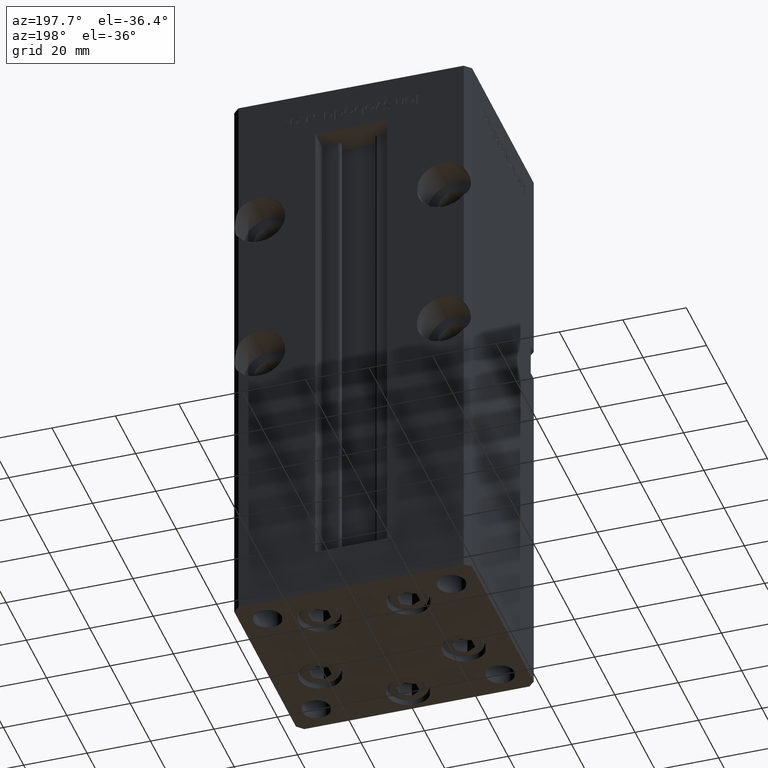
[diagram: clean part render]
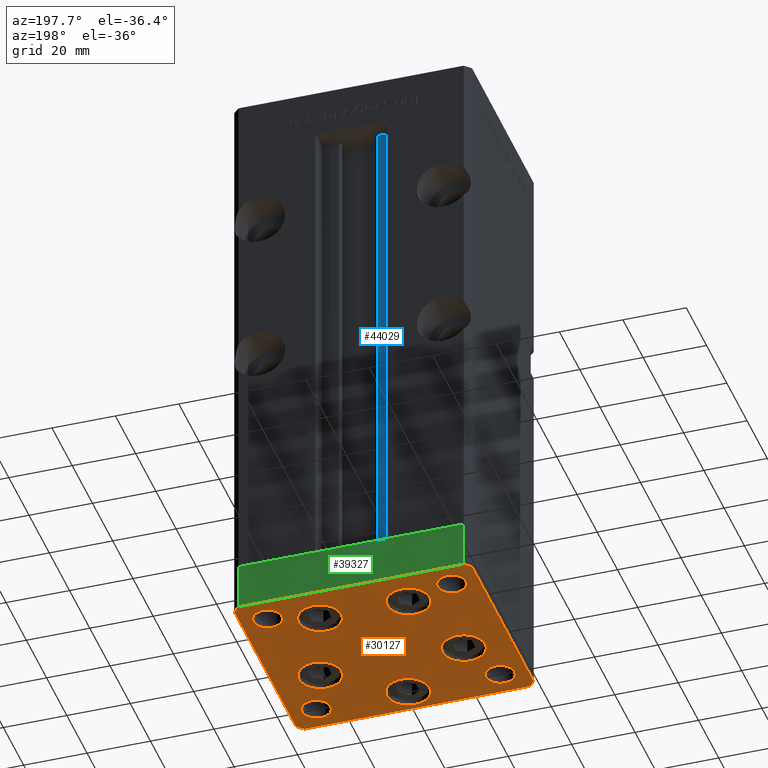
[diagram: same view with three faces highlighted in distinct colors, each labeled with its STEP entity id]
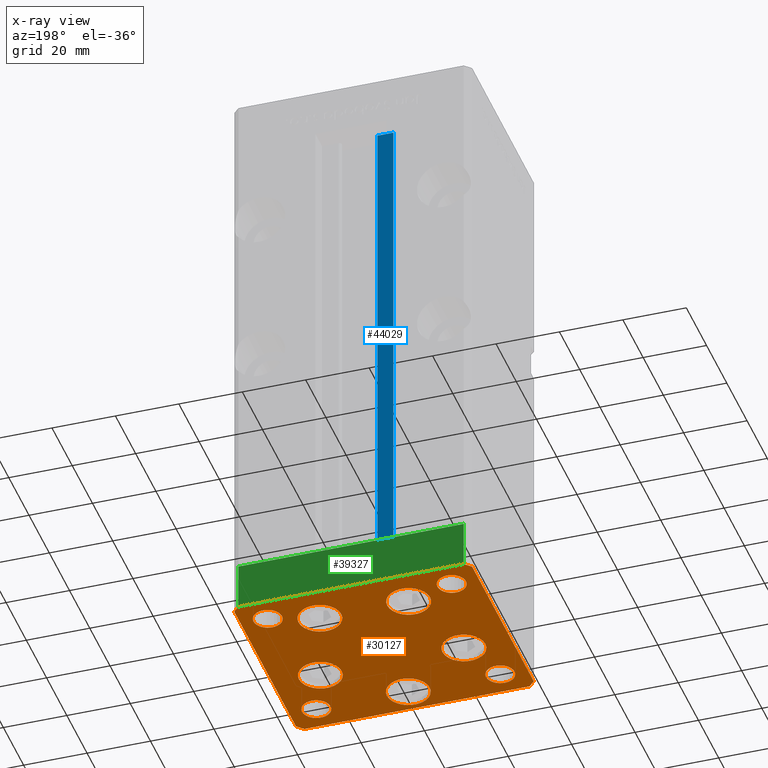
[diagram: x-ray of the same camera — body ghosted, the three highlighted faces saturated]
A machine part, auxiliary view with three faces highlighted in distinct colors.
The next image is the same camera in x-ray (body ghosted, the three faces saturated) — at least one of them is partly hidden behind the body in this view.
Their STEP definitions:

[orange] entity #30127 — the highlighted planar face has unit normal (0, 0, -1).
#12 = AXIS2_PLACEMENT_3D ( 'NONE', #42291, #50871, #46320 ) ;
#42 = CARTESIAN_POINT ( 'NONE',  ( 13.99106857963322348, 19.50000000000000000, 0.000000000000000000 ) ) ;
#216 = DIRECTION ( 'NONE',  ( 0.000000000000000000, -0.000000000000000000, -1.000000000000000000 ) ) ;
#895 = VECTOR ( 'NONE', #5261, 1000.000000000000000 ) ;
#925 = AXIS2_PLACEMENT_3D ( 'NONE', #44680, #19657, #11310 ) ;
#1130 = ORIENTED_EDGE ( 'NONE', *, *, #2839, .T. ) ;
#1533 = DIRECTION ( 'NONE',  ( 0.000000000000000000, -0.000000000000000000, -1.000000000000000000 ) ) ;
#1862 = DIRECTION ( 'NONE',  ( -0.7071067811865426878, -0.7071067811865524577, 0.000000000000000000 ) ) ;
#1924 = FACE_BOUND ( 'NONE', #46080, .T. ) ;
#2041 = DIRECTION ( 'NONE',  ( 0.7071067811865487940, 0.7071067811865463515, 0.000000000000000000 ) ) ;
#2263 = VERTEX_POINT ( 'NONE', #17030 ) ;
#2337 = VECTOR ( 'NONE', #2827, 1000.000000000000000 ) ;
#2526 = ORIENTED_EDGE ( 'NONE', *, *, #5913, .T. ) ;
#2611 = CARTESIAN_POINT ( 'NONE',  ( -20.74106857963763773, 19.49999999999999645, 0.000000000000000000 ) ) ;
#2827 = DIRECTION ( 'NONE',  ( -1.000000000000000000, -1.954618001100629052E-16, 0.000000000000000000 ) ) ;
#2839 = EDGE_CURVE ( 'NONE', #40923, #7219, #34032, .T. ) ;
#2934 = DIRECTION ( 'NONE',  ( 0.000000000000000000, -0.000000000000000000, -1.000000000000000000 ) ) ;
#2970 = CIRCLE ( 'NONE', #29613, 6.750000000004408918 ) ;
#3017 = EDGE_CURVE ( 'NONE', #31075, #40610, #22005, .T. ) ;
#3034 = VERTEX_POINT ( 'NONE', #24140 ) ;
#3510 = FACE_BOUND ( 'NONE', #20585, .T. ) ;
#3649 = CIRCLE ( 'NONE', #38869, 4.499999999999997335 ) ;
#3722 = EDGE_CURVE ( 'NONE', #37988, #12501, #50391, .T. ) ;
#3811 = DIRECTION ( 'NONE',  ( 1.000000000000000000, 0.000000000000000000, 0.000000000000000000 ) ) ;
#3890 = DIRECTION ( 'NONE',  ( 1.000000000000000000, 0.000000000000000000, 0.000000000000000000 ) ) ;
#3985 = VERTEX_POINT ( 'NONE', #10351 ) ;
#4478 = AXIS2_PLACEMENT_3D ( 'NONE', #45066, #24619, #3890 ) ;
#4651 = DIRECTION ( 'NONE',  ( 0.000000000000000000, -0.000000000000000000, -1.000000000000000000 ) ) ;
#4831 = EDGE_LOOP ( 'NONE', ( #41361, #16090 ) ) ;
#5221 = ORIENTED_EDGE ( 'NONE', *, *, #31690, .T. ) ;
#5224 = CARTESIAN_POINT ( 'NONE',  ( -24.50000000000001066, -23.99999999999999289, 0.000000000000000000 ) ) ;
#5261 = DIRECTION ( 'NONE',  ( 4.550094363217855288E-16, -1.000000000000000000, 0.000000000000000000 ) ) ;
#5678 = VERTEX_POINT ( 'NONE', #2611 ) ;
#5913 = EDGE_CURVE ( 'NONE', #30769, #3985, #40154, .T. ) ;
#6131 = ORIENTED_EDGE ( 'NONE', *, *, #3017, .T. ) ;
#6332 = ORIENTED_EDGE ( 'NONE', *, *, #23472, .T. ) ;
#6868 = DIRECTION ( 'NONE',  ( 1.000000000000000000, 0.000000000000000000, 0.000000000000000000 ) ) ;
#6877 = LINE ( 'NONE', #43753, #8335 ) ;
#6955 = EDGE_CURVE ( 'NONE', #8597, #44210, #15724, .T. ) ;
#6988 = CARTESIAN_POINT ( 'NONE',  ( -15.87741699796510808, -8.000000000000005329, 0.000000000000000000 ) ) ;
#7219 = VERTEX_POINT ( 'NONE', #27519 ) ;
#7932 = CARTESIAN_POINT ( 'NONE',  ( -37.49999999999998579, -30.50000000000001421, 0.000000000000000000 ) ) ;
#8335 = VECTOR ( 'NONE', #40534, 1000.000000000000000 ) ;
#8359 = DIRECTION ( 'NONE',  ( 1.000000000000000000, 0.000000000000000000, 0.000000000000000000 ) ) ;
#8375 = CIRCLE ( 'NONE', #15245, 6.750000000004410694 ) ;
#8517 = ORIENTED_EDGE ( 'NONE', *, *, #13771, .T. ) ;
#8596 = EDGE_CURVE ( 'NONE', #31727, #3034, #29789, .T. ) ;
#8597 = VERTEX_POINT ( 'NONE', #36902 ) ;
#8735 = CIRCLE ( 'NONE', #13016, 4.500000000000000888 ) ;
#8809 = VECTOR ( 'NONE', #1862, 1000.000000000000000 ) ;
#9096 = CARTESIAN_POINT ( 'NONE',  ( -29.00000000000001066, 24.00000000000000711, 0.000000000000000000 ) ) ;
#9134 = AXIS2_PLACEMENT_3D ( 'NONE', #42, #16960, #8359 ) ;
#10067 = VERTEX_POINT ( 'NONE', #39651 ) ;
#10351 = CARTESIAN_POINT ( 'NONE',  ( 6.750000000004413359, -24.00000000000000000, 0.000000000000000000 ) ) ;
#10363 = EDGE_LOOP ( 'NONE', ( #5221, #33392, #43956, #36332, #21380, #32531, #48648, #33955 ) ) ;
#10662 = DIRECTION ( 'NONE',  ( 0.7071067811865474617, -0.7071067811865474617, 0.000000000000000000 ) ) ;
#10690 = EDGE_CURVE ( 'NONE', #10067, #23081, #6877, .T. ) ;
#10812 = AXIS2_PLACEMENT_3D ( 'NONE', #39813, #2934, #19617 ) ;
#10931 = ORIENTED_EDGE ( 'NONE', *, *, #11757, .T. ) ;
#11310 = DIRECTION ( 'NONE',  ( 1.000000000000000000, 0.000000000000000000, 0.000000000000000000 ) ) ;
#11757 = EDGE_CURVE ( 'NONE', #3034, #31727, #16098, .T. ) ;
#12501 = VERTEX_POINT ( 'NONE', #36836 ) ;
#12989 = VERTEX_POINT ( 'NONE', #47532 ) ;
#13016 = AXIS2_PLACEMENT_3D ( 'NONE', #15301, #31742, #17160 ) ;
#13671 = DIRECTION ( 'NONE',  ( -0.000000000000000000, 0.000000000000000000, 1.000000000000000000 ) ) ;
#13771 = EDGE_CURVE ( 'NONE', #5678, #18567, #24638, .T. ) ;
#13831 = CARTESIAN_POINT ( 'NONE',  ( 29.00000000000001066, 24.00000000000000711, 0.000000000000000000 ) ) ;
#13915 = DIRECTION ( 'NONE',  ( 1.000000000000000000, 0.000000000000000000, 0.000000000000000000 ) ) ;
#13927 = CIRCLE ( 'NONE', #4478, 6.750000000004412470 ) ;
#14086 = ORIENTED_EDGE ( 'NONE', *, *, #32239, .T. ) ;
#14935 = EDGE_LOOP ( 'NONE', ( #2526, #39875 ) ) ;
#15041 = CARTESIAN_POINT ( 'NONE',  ( 35.50000000000000711, -32.50000000000000711, 0.000000000000000000 ) ) ;
#15214 = DIRECTION ( 'NONE',  ( 0.000000000000000000, -0.000000000000000000, -1.000000000000000000 ) ) ;
#15245 = AXIS2_PLACEMENT_3D ( 'NONE', #21511, #37930, #45733 ) ;
#15301 = CARTESIAN_POINT ( 'NONE',  ( -29.00000000000001066, -23.99999999999999289, 0.000000000000000000 ) ) ;
#15349 = PLANE ( 'NONE',  #925 ) ;
#15724 = LINE ( 'NONE', #16260, #2337 ) ;
#15746 = ORIENTED_EDGE ( 'NONE', *, *, #41413, .F. ) ;
#15792 = CARTESIAN_POINT ( 'NONE',  ( -33.50000000000001421, -23.99999999999999289, 0.000000000000000000 ) ) ;
#15814 = VERTEX_POINT ( 'NONE', #6988 ) ;
#15881 = FACE_OUTER_BOUND ( 'NONE', #10363, .T. ) ;
#16090 = ORIENTED_EDGE ( 'NONE', *, *, #42010, .F. ) ;
#16098 = CIRCLE ( 'NONE', #36740, 6.750000000004407141 ) ;
#16260 = CARTESIAN_POINT ( 'NONE',  ( 35.49999999999992184, 32.50000000000000711, 0.000000000000000000 ) ) ;
#16337 = DIRECTION ( 'NONE',  ( 1.000000000000000000, 0.000000000000000000, 0.000000000000000000 ) ) ;
#16531 = EDGE_CURVE ( 'NONE', #27603, #41835, #34284, .T. ) ;
#16836 = EDGE_CURVE ( 'NONE', #18567, #5678, #8375, .T. ) ;
#16960 = DIRECTION ( 'NONE',  ( 0.000000000000000000, -0.000000000000000000, -1.000000000000000000 ) ) ;
#17030 = CARTESIAN_POINT ( 'NONE',  ( -37.50000000000001421, 30.49999999999998579, 0.000000000000000000 ) ) ;
#17160 = DIRECTION ( 'NONE',  ( 1.000000000000000000, 0.000000000000000000, 0.000000000000000000 ) ) ;
#17908 = VERTEX_POINT ( 'NONE', #35276 ) ;
#18295 = CIRCLE ( 'NONE', #28635, 4.499999999999997335 ) ;
#18422 = DIRECTION ( 'NONE',  ( 0.000000000000000000, -0.000000000000000000, -1.000000000000000000 ) ) ;
#18567 = VERTEX_POINT ( 'NONE', #20565 ) ;
#18952 = DIRECTION ( 'NONE',  ( 1.000000000000000000, 0.000000000000000000, 0.000000000000000000 ) ) ;
#19115 = FACE_BOUND ( 'NONE', #14935, .T. ) ;
#19144 = DIRECTION ( 'NONE',  ( 0.000000000000000000, -0.000000000000000000, -1.000000000000000000 ) ) ;
#19617 = DIRECTION ( 'NONE',  ( 1.000000000000000000, 0.000000000000000000, 0.000000000000000000 ) ) ;
#19657 = DIRECTION ( 'NONE',  ( -0.000000000000000000, 0.000000000000000000, 1.000000000000000000 ) ) ;
#19955 = CARTESIAN_POINT ( 'NONE',  ( -35.49999999999998579, -32.50000000000001421, 0.000000000000000000 ) ) ;
#20089 = CARTESIAN_POINT ( 'NONE',  ( 7.241068579628817226, 19.50000000000000000, 0.000000000000000000 ) ) ;
#20565 = CARTESIAN_POINT ( 'NONE',  ( -7.241068579628817226, 19.49999999999999645, 0.000000000000000000 ) ) ;
#20585 = EDGE_LOOP ( 'NONE', ( #23691, #14086 ) ) ;
#20606 = VERTEX_POINT ( 'NONE', #7932 ) ;
#21380 = ORIENTED_EDGE ( 'NONE', *, *, #41903, .T. ) ;
#21449 = DIRECTION ( 'NONE',  ( 1.000000000000000000, 0.000000000000000000, 0.000000000000000000 ) ) ;
#21511 = CARTESIAN_POINT ( 'NONE',  ( -13.99106857963322703, 19.49999999999999645, 0.000000000000000000 ) ) ;
#21713 = CARTESIAN_POINT ( 'NONE',  ( -22.62741699796951877, -8.000000000000005329, 0.000000000000000000 ) ) ;
#22005 = CIRCLE ( 'NONE', #28907, 6.750000000004408918 ) ;
#22088 = EDGE_CURVE ( 'NONE', #41835, #10067, #42941, .T. ) ;
#22475 = CARTESIAN_POINT ( 'NONE',  ( 2.939152317953647500E-15, -24.00000000000000000, 0.000000000000000000 ) ) ;
#23081 = VERTEX_POINT ( 'NONE', #45138 ) ;
#23198 = CIRCLE ( 'NONE', #12, 4.499999999999997335 ) ;
#23244 = EDGE_LOOP ( 'NONE', ( #33023, #10931 ) ) ;
#23436 = FACE_BOUND ( 'NONE', #4831, .T. ) ;
#23472 = EDGE_CURVE ( 'NONE', #7219, #40923, #23198, .T. ) ;
#23691 = ORIENTED_EDGE ( 'NONE', *, *, #38490, .T. ) ;
#23924 = CARTESIAN_POINT ( 'NONE',  ( -35.50000000000002842, 32.49999999999999289, 0.000000000000000000 ) ) ;
#24140 = CARTESIAN_POINT ( 'NONE',  ( 20.74106857963763062, 19.50000000000000000, 0.000000000000000000 ) ) ;
#24365 = CIRCLE ( 'NONE', #42403, 6.750000000004410694 ) ;
#24619 = DIRECTION ( 'NONE',  ( 0.000000000000000000, -0.000000000000000000, -1.000000000000000000 ) ) ;
#24629 = EDGE_LOOP ( 'NONE', ( #43346, #15746 ) ) ;
#24638 = CIRCLE ( 'NONE', #39252, 6.750000000004410694 ) ;
#24759 = EDGE_CURVE ( 'NONE', #2263, #20606, #25730, .T. ) ;
#25136 = VECTOR ( 'NONE', #45968, 999.9999999999998863 ) ;
#25284 = AXIS2_PLACEMENT_3D ( 'NONE', #49164, #32519, #16337 ) ;
#25620 = VERTEX_POINT ( 'NONE', #15792 ) ;
#25730 = LINE ( 'NONE', #42131, #895 ) ;
#25795 = CARTESIAN_POINT ( 'NONE',  ( 37.49999999999992184, 30.50000000000001066, 0.000000000000000000 ) ) ;
#26098 = LINE ( 'NONE', #43292, #8809 ) ;
#26395 = AXIS2_PLACEMENT_3D ( 'NONE', #22475, #18422, #18952 ) ;
#26488 = DIRECTION ( 'NONE',  ( -0.000000000000000000, 0.000000000000000000, 1.000000000000000000 ) ) ;
#27346 = ORIENTED_EDGE ( 'NONE', *, *, #51343, .T. ) ;
#27519 = CARTESIAN_POINT ( 'NONE',  ( 33.50000000000000711, -23.99999999999999289, 0.000000000000000000 ) ) ;
#27603 = VERTEX_POINT ( 'NONE', #19955 ) ;
#27731 = AXIS2_PLACEMENT_3D ( 'NONE', #35168, #47538, #13915 ) ;
#28190 = CARTESIAN_POINT ( 'NONE',  ( 22.62741699796951877, -8.000000000000000000, 0.000000000000000000 ) ) ;
#28289 = FACE_BOUND ( 'NONE', #23244, .T. ) ;
#28635 = AXIS2_PLACEMENT_3D ( 'NONE', #13831, #26488, #31056 ) ;
#28907 = AXIS2_PLACEMENT_3D ( 'NONE', #28190, #52361, #44583 ) ;
#29309 = CARTESIAN_POINT ( 'NONE',  ( 29.00000000000001066, 24.00000000000000711, 0.000000000000000000 ) ) ;
#29613 = AXIS2_PLACEMENT_3D ( 'NONE', #36810, #216, #36543 ) ;
#29789 = CIRCLE ( 'NONE', #9134, 6.750000000004407141 ) ;
#29842 = DIRECTION ( 'NONE',  ( 1.000000000000000000, 0.000000000000000000, 0.000000000000000000 ) ) ;
#30057 = VECTOR ( 'NONE', #2041, 1000.000000000000000 ) ;
#30127 = ADVANCED_FACE ( 'NONE', ( #1924, #28289, #31786, #19115, #31521, #23436, #48173, #40658, #15881, #3510 ), #15349, .T. ) ;
#30769 = VERTEX_POINT ( 'NONE', #47526 ) ;
#31056 = DIRECTION ( 'NONE',  ( 1.000000000000000000, 0.000000000000000000, 0.000000000000000000 ) ) ;
#31075 = VERTEX_POINT ( 'NONE', #35554 ) ;
#31082 = VECTOR ( 'NONE', #10662, 1000.000000000000114 ) ;
#31146 = LINE ( 'NONE', #47534, #31082 ) ;
#31521 = FACE_BOUND ( 'NONE', #38976, .T. ) ;
#31690 = EDGE_CURVE ( 'NONE', #20606, #27603, #31146, .T. ) ;
#31727 = VERTEX_POINT ( 'NONE', #20089 ) ;
#31742 = DIRECTION ( 'NONE',  ( 0.000000000000000000, -0.000000000000000000, -1.000000000000000000 ) ) ;
#31786 = FACE_BOUND ( 'NONE', #52266, .T. ) ;
#32239 = EDGE_CURVE ( 'NONE', #25620, #38011, #8735, .T. ) ;
#32519 = DIRECTION ( 'NONE',  ( 0.000000000000000000, -0.000000000000000000, -1.000000000000000000 ) ) ;
#32531 = ORIENTED_EDGE ( 'NONE', *, *, #6955, .T. ) ;
#32715 = ORIENTED_EDGE ( 'NONE', *, *, #16836, .T. ) ;
#33023 = ORIENTED_EDGE ( 'NONE', *, *, #8596, .T. ) ;
#33392 = ORIENTED_EDGE ( 'NONE', *, *, #16531, .T. ) ;
#33609 = DIRECTION ( 'NONE',  ( -0.000000000000000000, 0.000000000000000000, 1.000000000000000000 ) ) ;
#33758 = DIRECTION ( 'NONE',  ( 1.000000000000000000, 9.773090005503140331E-17, 0.000000000000000000 ) ) ;
#33955 = ORIENTED_EDGE ( 'NONE', *, *, #24759, .T. ) ;
#34032 = CIRCLE ( 'NONE', #10812, 4.499999999999997335 ) ;
#34071 = AXIS2_PLACEMENT_3D ( 'NONE', #9096, #33609, #46235 ) ;
#34284 = LINE ( 'NONE', #38058, #47044 ) ;
#34400 = EDGE_CURVE ( 'NONE', #38141, #15814, #13927, .T. ) ;
#34537 = EDGE_LOOP ( 'NONE', ( #6332, #1130 ) ) ;
#34708 = CIRCLE ( 'NONE', #25284, 4.500000000000000888 ) ;
#35137 = CARTESIAN_POINT ( 'NONE',  ( 2.939152317953647500E-15, -24.00000000000000000, 0.000000000000000000 ) ) ;
#35168 = CARTESIAN_POINT ( 'NONE',  ( -29.00000000000001066, 24.00000000000000711, 0.000000000000000000 ) ) ;
#35276 = CARTESIAN_POINT ( 'NONE',  ( 24.50000000000001421, 24.00000000000000711, 0.000000000000000000 ) ) ;
#35554 = CARTESIAN_POINT ( 'NONE',  ( 15.87741699796511163, -8.000000000000000000, 0.000000000000000000 ) ) ;
#36332 = ORIENTED_EDGE ( 'NONE', *, *, #10690, .T. ) ;
#36543 = DIRECTION ( 'NONE',  ( 1.000000000000000000, 0.000000000000000000, 0.000000000000000000 ) ) ;
#36632 = CARTESIAN_POINT ( 'NONE',  ( 24.50000000000001421, -23.99999999999999289, 0.000000000000000000 ) ) ;
#36740 = AXIS2_PLACEMENT_3D ( 'NONE', #49317, #4651, #44770 ) ;
#36810 = CARTESIAN_POINT ( 'NONE',  ( 22.62741699796951877, -8.000000000000000000, 0.000000000000000000 ) ) ;
#36836 = CARTESIAN_POINT ( 'NONE',  ( -33.50000000000001421, 24.00000000000000711, 0.000000000000000000 ) ) ;
#36902 = CARTESIAN_POINT ( 'NONE',  ( 35.49999999999992184, 32.50000000000000711, 0.000000000000000000 ) ) ;
#37721 = EDGE_CURVE ( 'NONE', #3985, #30769, #24365, .T. ) ;
#37930 = DIRECTION ( 'NONE',  ( 0.000000000000000000, -0.000000000000000000, -1.000000000000000000 ) ) ;
#37988 = VERTEX_POINT ( 'NONE', #49887 ) ;
#38011 = VERTEX_POINT ( 'NONE', #5224 ) ;
#38058 = CARTESIAN_POINT ( 'NONE',  ( -35.49999999999998579, -32.50000000000001421, 0.000000000000000000 ) ) ;
#38141 = VERTEX_POINT ( 'NONE', #52520 ) ;
#38490 = EDGE_CURVE ( 'NONE', #38011, #25620, #34708, .T. ) ;
#38679 = EDGE_CURVE ( 'NONE', #15814, #38141, #48449, .T. ) ;
#38869 = AXIS2_PLACEMENT_3D ( 'NONE', #29309, #13671, #29842 ) ;
#38902 = CARTESIAN_POINT ( 'NONE',  ( 35.50000000000000711, -32.50000000000000711, 0.000000000000000000 ) ) ;
#38976 = EDGE_LOOP ( 'NONE', ( #49681, #45821 ) ) ;
#39252 = AXIS2_PLACEMENT_3D ( 'NONE', #39884, #19144, #3811 ) ;
#39651 = CARTESIAN_POINT ( 'NONE',  ( 37.50000000000001421, -30.50000000000000711, 0.000000000000000000 ) ) ;
#39813 = CARTESIAN_POINT ( 'NONE',  ( 29.00000000000001066, -23.99999999999999289, 0.000000000000000000 ) ) ;
#39875 = ORIENTED_EDGE ( 'NONE', *, *, #37721, .T. ) ;
#39884 = CARTESIAN_POINT ( 'NONE',  ( -13.99106857963322703, 19.49999999999999645, 0.000000000000000000 ) ) ;
#40154 = CIRCLE ( 'NONE', #26395, 6.750000000004410694 ) ;
#40534 = DIRECTION ( 'NONE',  ( -1.478780668045802821E-15, 1.000000000000000000, 0.000000000000000000 ) ) ;
#40610 = VERTEX_POINT ( 'NONE', #49442 ) ;
#40658 = FACE_BOUND ( 'NONE', #24629, .T. ) ;
#40923 = VERTEX_POINT ( 'NONE', #36632 ) ;
#41361 = ORIENTED_EDGE ( 'NONE', *, *, #42805, .F. ) ;
#41413 = EDGE_CURVE ( 'NONE', #12501, #37988, #50915, .T. ) ;
#41835 = VERTEX_POINT ( 'NONE', #15041 ) ;
#41903 = EDGE_CURVE ( 'NONE', #23081, #8597, #50529, .T. ) ;
#42010 = EDGE_CURVE ( 'NONE', #17908, #12989, #3649, .T. ) ;
#42131 = CARTESIAN_POINT ( 'NONE',  ( -37.50000000000001421, 30.49999999999998579, 0.000000000000000000 ) ) ;
#42291 = CARTESIAN_POINT ( 'NONE',  ( 29.00000000000001066, -23.99999999999999289, 0.000000000000000000 ) ) ;
#42403 = AXIS2_PLACEMENT_3D ( 'NONE', #35137, #15214, #6868 ) ;
#42805 = EDGE_CURVE ( 'NONE', #12989, #17908, #18295, .T. ) ;
#42941 = LINE ( 'NONE', #38902, #30057 ) ;
#43292 = CARTESIAN_POINT ( 'NONE',  ( -35.50000000000002842, 32.49999999999999289, 0.000000000000000000 ) ) ;
#43346 = ORIENTED_EDGE ( 'NONE', *, *, #3722, .F. ) ;
#43753 = CARTESIAN_POINT ( 'NONE',  ( 37.50000000000001421, -30.50000000000000711, 0.000000000000000000 ) ) ;
#43956 = ORIENTED_EDGE ( 'NONE', *, *, #22088, .T. ) ;
#44210 = VERTEX_POINT ( 'NONE', #23924 ) ;
#44583 = DIRECTION ( 'NONE',  ( 1.000000000000000000, 0.000000000000000000, 0.000000000000000000 ) ) ;
#44680 = CARTESIAN_POINT ( 'NONE',  ( 0.000000000000000000, 0.000000000000000000, 0.000000000000000000 ) ) ;
#44770 = DIRECTION ( 'NONE',  ( 1.000000000000000000, 0.000000000000000000, 0.000000000000000000 ) ) ;
#45014 = AXIS2_PLACEMENT_3D ( 'NONE', #21713, #1533, #21449 ) ;
#45066 = CARTESIAN_POINT ( 'NONE',  ( -22.62741699796951877, -8.000000000000005329, 0.000000000000000000 ) ) ;
#45138 = CARTESIAN_POINT ( 'NONE',  ( 37.49999999999992184, 30.50000000000001066, 0.000000000000000000 ) ) ;
#45733 = DIRECTION ( 'NONE',  ( 1.000000000000000000, 0.000000000000000000, 0.000000000000000000 ) ) ;
#45821 = ORIENTED_EDGE ( 'NONE', *, *, #38679, .T. ) ;
#45968 = DIRECTION ( 'NONE',  ( -0.7071067811865482389, 0.7071067811865469066, 0.000000000000000000 ) ) ;
#46080 = EDGE_LOOP ( 'NONE', ( #8517, #32715 ) ) ;
#46235 = DIRECTION ( 'NONE',  ( 1.000000000000000000, 0.000000000000000000, 0.000000000000000000 ) ) ;
#46320 = DIRECTION ( 'NONE',  ( 1.000000000000000000, 0.000000000000000000, 0.000000000000000000 ) ) ;
#46633 = EDGE_CURVE ( 'NONE', #44210, #2263, #26098, .T. ) ;
#47044 = VECTOR ( 'NONE', #33758, 1000.000000000000000 ) ;
#47526 = CARTESIAN_POINT ( 'NONE',  ( -6.750000000004408029, -24.00000000000000000, 0.000000000000000000 ) ) ;
#47532 = CARTESIAN_POINT ( 'NONE',  ( 33.50000000000000711, 24.00000000000000711, 0.000000000000000000 ) ) ;
#47534 = CARTESIAN_POINT ( 'NONE',  ( -37.49999999999998579, -30.50000000000001421, 0.000000000000000000 ) ) ;
#47538 = DIRECTION ( 'NONE',  ( -0.000000000000000000, 0.000000000000000000, 1.000000000000000000 ) ) ;
#48173 = FACE_BOUND ( 'NONE', #34537, .T. ) ;
#48449 = CIRCLE ( 'NONE', #45014, 6.750000000004412470 ) ;
#48648 = ORIENTED_EDGE ( 'NONE', *, *, #46633, .T. ) ;
#49164 = CARTESIAN_POINT ( 'NONE',  ( -29.00000000000001066, -23.99999999999999289, 0.000000000000000000 ) ) ;
#49317 = CARTESIAN_POINT ( 'NONE',  ( 13.99106857963322348, 19.50000000000000000, 0.000000000000000000 ) ) ;
#49442 = CARTESIAN_POINT ( 'NONE',  ( 29.37741699797392769, -8.000000000000000000, 0.000000000000000000 ) ) ;
#49681 = ORIENTED_EDGE ( 'NONE', *, *, #34400, .T. ) ;
#49887 = CARTESIAN_POINT ( 'NONE',  ( -24.50000000000001066, 24.00000000000000711, 0.000000000000000000 ) ) ;
#50391 = CIRCLE ( 'NONE', #34071, 4.500000000000000888 ) ;
#50529 = LINE ( 'NONE', #25795, #25136 ) ;
#50871 = DIRECTION ( 'NONE',  ( 0.000000000000000000, -0.000000000000000000, -1.000000000000000000 ) ) ;
#50915 = CIRCLE ( 'NONE', #27731, 4.500000000000000888 ) ;
#51343 = EDGE_CURVE ( 'NONE', #40610, #31075, #2970, .T. ) ;
#52266 = EDGE_LOOP ( 'NONE', ( #6131, #27346 ) ) ;
#52361 = DIRECTION ( 'NONE',  ( 0.000000000000000000, -0.000000000000000000, -1.000000000000000000 ) ) ;
#52520 = CARTESIAN_POINT ( 'NONE',  ( -29.37741699797393125, -8.000000000000005329, 0.000000000000000000 ) ) ;

[blue] entity #44029 — the highlighted planar face has unit normal (0, -1, 0).
#1950 = VECTOR ( 'NONE', #48060, 1000.000000000000000 ) ;
#1957 = EDGE_CURVE ( 'NONE', #13246, #9708, #4767, .T. ) ;
#2863 = CARTESIAN_POINT ( 'NONE',  ( -11.24999999999998046, 26.00000000000000000, 0.000000000000000000 ) ) ;
#3186 = ORIENTED_EDGE ( 'NONE', *, *, #27866, .F. ) ;
#4767 = LINE ( 'NONE', #45935, #15119 ) ;
#5536 = VERTEX_POINT ( 'NONE', #30955 ) ;
#6760 = ORIENTED_EDGE ( 'NONE', *, *, #35132, .T. ) ;
#9708 = VERTEX_POINT ( 'NONE', #29214 ) ;
#13246 = VERTEX_POINT ( 'NONE', #25718 ) ;
#15119 = VECTOR ( 'NONE', #20923, 1000.000000000000000 ) ;
#15879 = ORIENTED_EDGE ( 'NONE', *, *, #1957, .F. ) ;
#17754 = VERTEX_POINT ( 'NONE', #36420 ) ;
#20923 = DIRECTION ( 'NONE',  ( -0.000000000000000000, -0.000000000000000000, 1.000000000000000000 ) ) ;
#25718 = CARTESIAN_POINT ( 'NONE',  ( -6.183333333333980164, 26.00000000000000000, 0.000000000000000000 ) ) ;
#25940 = VECTOR ( 'NONE', #43053, 1000.000000000000000 ) ;
#26884 = FACE_OUTER_BOUND ( 'NONE', #36385, .T. ) ;
#27866 = EDGE_CURVE ( 'NONE', #17754, #13246, #42794, .T. ) ;
#29214 = CARTESIAN_POINT ( 'NONE',  ( -6.183333333333980164, 26.00000000000000000, 156.0000000000000000 ) ) ;
#30142 = DIRECTION ( 'NONE',  ( 0.000000000000000000, -1.000000000000000000, -0.000000000000000000 ) ) ;
#30163 = CARTESIAN_POINT ( 'NONE',  ( -6.183333333333980164, 26.00000000000000000, 0.000000000000000000 ) ) ;
#30955 = CARTESIAN_POINT ( 'NONE',  ( -11.24999999999998046, 26.00000000000000000, 156.0000000000000000 ) ) ;
#33896 = CARTESIAN_POINT ( 'NONE',  ( 0.000000000000000000, 26.00000000000000000, 156.0000000000000000 ) ) ;
#35132 = EDGE_CURVE ( 'NONE', #17754, #5536, #43761, .T. ) ;
#36385 = EDGE_LOOP ( 'NONE', ( #15879, #3186, #6760, #51867 ) ) ;
#36420 = CARTESIAN_POINT ( 'NONE',  ( -11.24999999999998046, 26.00000000000000000, 0.000000000000000000 ) ) ;
#40608 = VECTOR ( 'NONE', #46261, 1000.000000000000000 ) ;
#42794 = LINE ( 'NONE', #30163, #25940 ) ;
#43030 = DIRECTION ( 'NONE',  ( 0.000000000000000000, 0.000000000000000000, -1.000000000000000000 ) ) ;
#43053 = DIRECTION ( 'NONE',  ( 1.000000000000000000, -0.000000000000000000, -0.000000000000000000 ) ) ;
#43761 = LINE ( 'NONE', #2863, #1950 ) ;
#44029 = ADVANCED_FACE ( 'NONE', ( #26884 ), #47061, .F. ) ;
#44864 = AXIS2_PLACEMENT_3D ( 'NONE', #51091, #30142, #43030 ) ;
#45594 = EDGE_CURVE ( 'NONE', #9708, #5536, #51342, .T. ) ;
#45935 = CARTESIAN_POINT ( 'NONE',  ( -6.183333333333980164, 26.00000000000000000, 0.000000000000000000 ) ) ;
#46261 = DIRECTION ( 'NONE',  ( -1.000000000000000000, 0.000000000000000000, 0.000000000000000000 ) ) ;
#47061 = PLANE ( 'NONE',  #44864 ) ;
#48060 = DIRECTION ( 'NONE',  ( -0.000000000000000000, -0.000000000000000000, 1.000000000000000000 ) ) ;
#51091 = CARTESIAN_POINT ( 'NONE',  ( -6.183333333333980164, 26.00000000000000000, 0.000000000000000000 ) ) ;
#51342 = LINE ( 'NONE', #33896, #40608 ) ;
#51867 = ORIENTED_EDGE ( 'NONE', *, *, #45594, .F. ) ;

[green] entity #39327 — the highlighted planar face has unit normal (-0, 1, 0).
#239 = ORIENTED_EDGE ( 'NONE', *, *, #6955, .F. ) ;
#2337 = VECTOR ( 'NONE', #2827, 1000.000000000000000 ) ;
#2827 = DIRECTION ( 'NONE',  ( -1.000000000000000000, -1.954618001100629052E-16, 0.000000000000000000 ) ) ;
#3033 = VECTOR ( 'NONE', #6681, 1000.000000000000000 ) ;
#6681 = DIRECTION ( 'NONE',  ( 0.000000000000000000, 0.000000000000000000, 1.000000000000000000 ) ) ;
#6932 = CARTESIAN_POINT ( 'NONE',  ( 35.49999999999992184, 32.50000000000000711, -15.00000000000000000 ) ) ;
#6955 = EDGE_CURVE ( 'NONE', #8597, #44210, #15724, .T. ) ;
#7558 = VERTEX_POINT ( 'NONE', #31330 ) ;
#8597 = VERTEX_POINT ( 'NONE', #36902 ) ;
#8926 = AXIS2_PLACEMENT_3D ( 'NONE', #45554, #30207, #29413 ) ;
#9462 = FACE_OUTER_BOUND ( 'NONE', #21194, .T. ) ;
#10149 = LINE ( 'NONE', #50530, #14728 ) ;
#12983 = PLANE ( 'NONE',  #8926 ) ;
#14563 = ORIENTED_EDGE ( 'NONE', *, *, #28111, .T. ) ;
#14728 = VECTOR ( 'NONE', #22273, 1000.000000000000000 ) ;
#15724 = LINE ( 'NONE', #16260, #2337 ) ;
#16260 = CARTESIAN_POINT ( 'NONE',  ( 35.49999999999992184, 32.50000000000000711, 0.000000000000000000 ) ) ;
#19370 = VERTEX_POINT ( 'NONE', #51843 ) ;
#21194 = EDGE_LOOP ( 'NONE', ( #239, #40249, #14563, #21584 ) ) ;
#21584 = ORIENTED_EDGE ( 'NONE', *, *, #40375, .T. ) ;
#22273 = DIRECTION ( 'NONE',  ( -1.000000000000000000, -1.954618001100629052E-16, 0.000000000000000000 ) ) ;
#23924 = CARTESIAN_POINT ( 'NONE',  ( -35.50000000000002842, 32.49999999999999289, 0.000000000000000000 ) ) ;
#27034 = VECTOR ( 'NONE', #32248, 1000.000000000000000 ) ;
#28111 = EDGE_CURVE ( 'NONE', #7558, #19370, #10149, .T. ) ;
#29413 = DIRECTION ( 'NONE',  ( -1.000000000000000000, -1.954618001100629052E-16, 0.000000000000000000 ) ) ;
#30207 = DIRECTION ( 'NONE',  ( -1.954618001100629052E-16, 1.000000000000000000, 0.000000000000000000 ) ) ;
#31330 = CARTESIAN_POINT ( 'NONE',  ( 35.49999999999992184, 32.50000000000000711, -15.00000000000000000 ) ) ;
#32248 = DIRECTION ( 'NONE',  ( 0.000000000000000000, 0.000000000000000000, 1.000000000000000000 ) ) ;
#36902 = CARTESIAN_POINT ( 'NONE',  ( 35.49999999999992184, 32.50000000000000711, 0.000000000000000000 ) ) ;
#39256 = CARTESIAN_POINT ( 'NONE',  ( -35.50000000000002842, 32.49999999999999289, -15.00000000000000000 ) ) ;
#39327 = ADVANCED_FACE ( 'NONE', ( #9462 ), #12983, .T. ) ;
#40249 = ORIENTED_EDGE ( 'NONE', *, *, #51245, .F. ) ;
#40375 = EDGE_CURVE ( 'NONE', #19370, #44210, #42500, .T. ) ;
#42500 = LINE ( 'NONE', #39256, #3033 ) ;
#43803 = LINE ( 'NONE', #6932, #27034 ) ;
#44210 = VERTEX_POINT ( 'NONE', #23924 ) ;
#45554 = CARTESIAN_POINT ( 'NONE',  ( 35.49999999999992184, 32.50000000000000711, -15.00000000000000000 ) ) ;
#50530 = CARTESIAN_POINT ( 'NONE',  ( 35.49999999999992184, 32.50000000000000711, -15.00000000000000000 ) ) ;
#51245 = EDGE_CURVE ( 'NONE', #7558, #8597, #43803, .T. ) ;
#51843 = CARTESIAN_POINT ( 'NONE',  ( -35.50000000000002842, 32.49999999999999289, -15.00000000000000000 ) ) ;